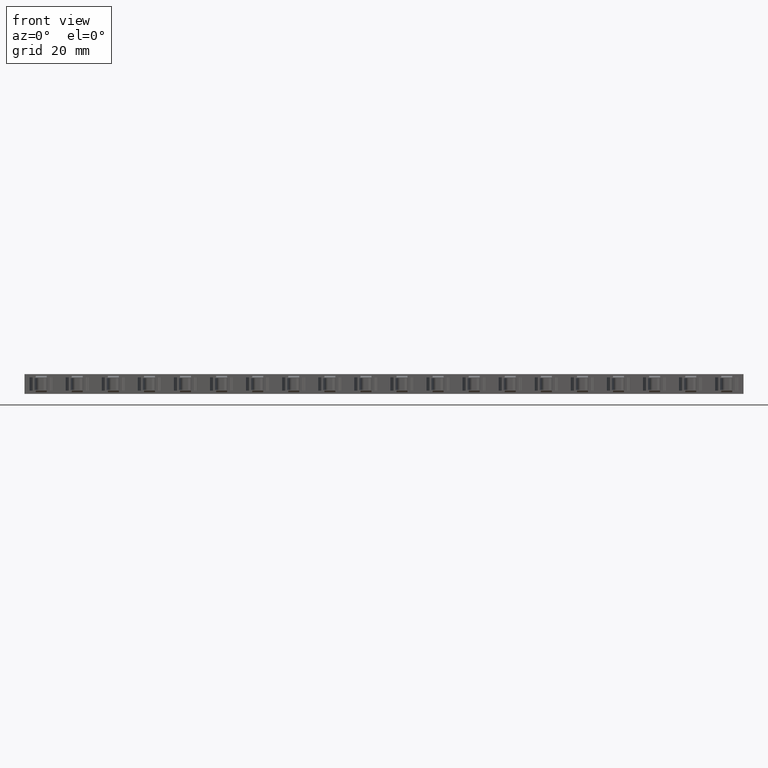
[diagram: clean part render]
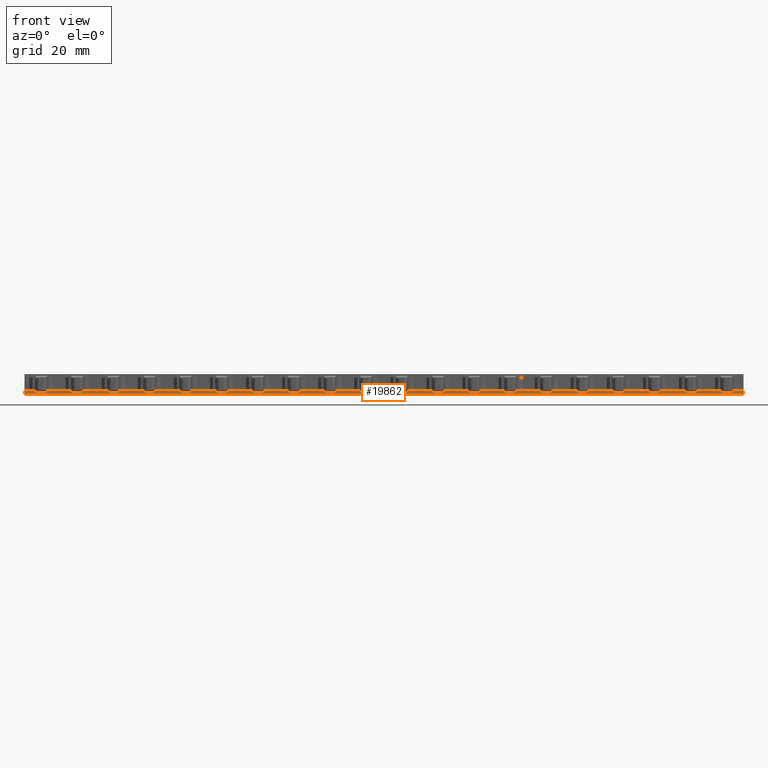
[diagram: same view with one face highlighted and labeled with its STEP entity id]
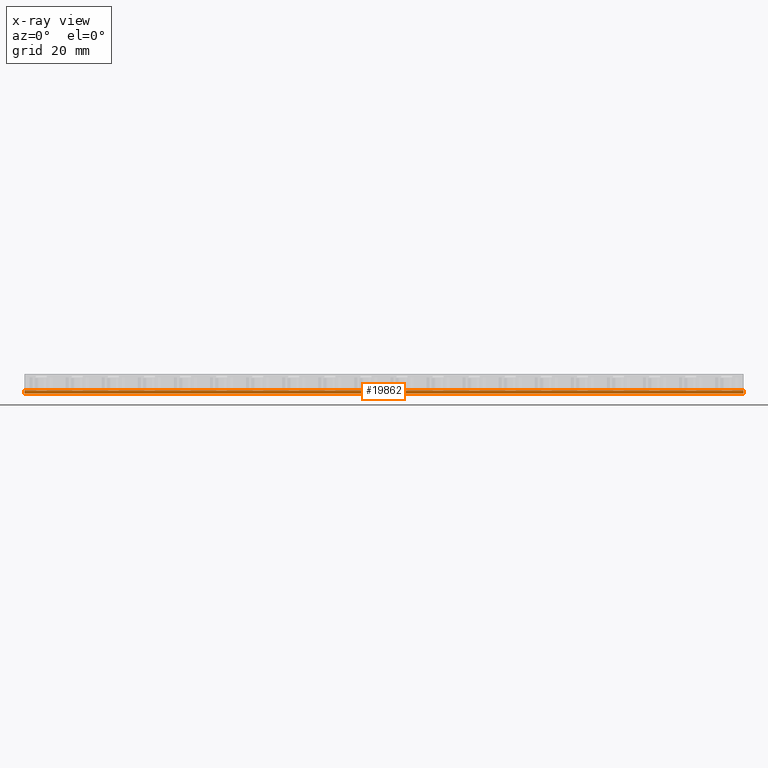
[diagram: x-ray of the same camera — body ghosted, the highlighted face saturated]
A machine part, front view. The second image highlights one B-rep face of the part: STEP entity #19862.
The next image is the same camera in x-ray: the body ghosted, the highlighted face saturated — about 0% of this face is hidden behind the body in this view.
In plain terms, the highlighted planar face has unit normal (0, -1, 0).
Its self-contained STEP definition (entity closure, byte-faithful):
#270 = EDGE_CURVE ( 'NONE', #14660, #14667, #4574, .T. ) ;
#281 = EDGE_CURVE ( 'NONE', #14667, #14103, #4628, .T. ) ;
#311 = EDGE_CURVE ( 'NONE', #14174, #14660, #4724, .T. ) ;
#1812 = EDGE_CURVE ( 'NONE', #14103, #14174, #11962, .T. ) ;
#2142 = VECTOR ( 'NONE', #4652, 1000.000000000000000 ) ;
#2147 = VECTOR ( 'NONE', #4746, 1000.000000000000000 ) ;
#2184 = VECTOR ( 'NONE', #4599, 1000.000000000000000 ) ;
#4574 = LINE ( 'NONE', #4598, #2184 ) ;
#4598 = CARTESIAN_POINT ( 'NONE',  ( 1136.944468391975100, 672.9078760720548200, 0.0000000000000000000 ) ) ;
#4599 = DIRECTION ( 'NONE',  ( -1.000000000000000000, -0.0000000000000000000, 0.0000000000000000000 ) ) ;
#4628 = LINE ( 'NONE', #4661, #2142 ) ;
#4652 = DIRECTION ( 'NONE',  ( 0.0000000000000000000, 0.0000000000000000000, -1.000000000000000000 ) ) ;
#4661 = CARTESIAN_POINT ( 'NONE',  ( 991.5944708023300800, 672.9078760720548200, 3.000000000000000000 ) ) ;
#4724 = LINE ( 'NONE', #4751, #2147 ) ;
#4746 = DIRECTION ( 'NONE',  ( -0.0000000000000000000, 0.0000000000000000000, 1.000000000000000000 ) ) ;
#4751 = CARTESIAN_POINT ( 'NONE',  ( 1154.994472239529600, 672.9078760720548200, -0.7499999999999997800 ) ) ;
#6999 = DIRECTION ( 'NONE',  ( 0.0000000000000000000, -1.000000000000000000, 0.0000000000000000000 ) ) ;
#7002 = CARTESIAN_POINT ( 'NONE',  ( 1130.994470802330200, 672.9078760720548200, -0.7499999999999997800 ) ) ;
#7017 = DIRECTION ( 'NONE',  ( 0.0000000000000000000, -0.0000000000000000000, -1.000000000000000000 ) ) ;
#7030 = PLANE ( 'NONE',  #17259 ) ;
#7031 = FACE_OUTER_BOUND ( 'NONE', #17891, .T. ) ;
#9139 = CARTESIAN_POINT ( 'NONE',  ( 1154.994472239529600, 672.9078760720548200, -0.7499999999999997800 ) ) ;
#9153 = CARTESIAN_POINT ( 'NONE',  ( 991.5944708023300800, 672.9078760720548200, -0.7499999999999997800 ) ) ;
#9554 = CARTESIAN_POINT ( 'NONE',  ( 991.5944708023300800, 672.9078760720548200, 0.0000000000000000000 ) ) ;
#9558 = CARTESIAN_POINT ( 'NONE',  ( 1154.994472239529600, 672.9078760720548200, 0.0000000000000000000 ) ) ;
#11962 = LINE ( 'NONE', #11991, #22389 ) ;
#11991 = CARTESIAN_POINT ( 'NONE',  ( 1130.994470802330200, 672.9078760720548200, -0.7499999999999997800 ) ) ;
#12001 = DIRECTION ( 'NONE',  ( 1.000000000000000000, 0.0000000000000000000, 0.0000000000000000000 ) ) ;
#13134 = ORIENTED_EDGE ( 'NONE', *, *, #311, .T. ) ;
#13139 = ORIENTED_EDGE ( 'NONE', *, *, #1812, .T. ) ;
#13151 = ORIENTED_EDGE ( 'NONE', *, *, #270, .T. ) ;
#13210 = ORIENTED_EDGE ( 'NONE', *, *, #281, .T. ) ;
#14103 = VERTEX_POINT ( 'NONE', #9153 ) ;
#14174 = VERTEX_POINT ( 'NONE', #9139 ) ;
#14660 = VERTEX_POINT ( 'NONE', #9558 ) ;
#14667 = VERTEX_POINT ( 'NONE', #9554 ) ;
#17259 = AXIS2_PLACEMENT_3D ( 'NONE', #7002, #6999, #7017 ) ;
#17891 = EDGE_LOOP ( 'NONE', ( #13151, #13210, #13139, #13134 ) ) ;
#19862 = ADVANCED_FACE ( 'NONE', ( #7031 ), #7030, .T. ) ;
#22389 = VECTOR ( 'NONE', #12001, 1000.000000000000000 ) ;